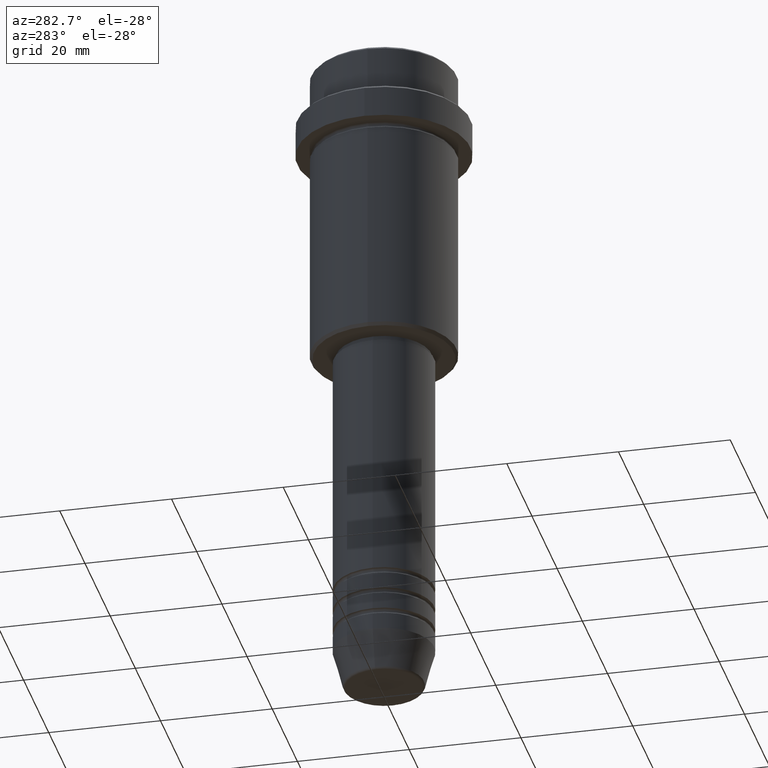
[diagram: clean part render]
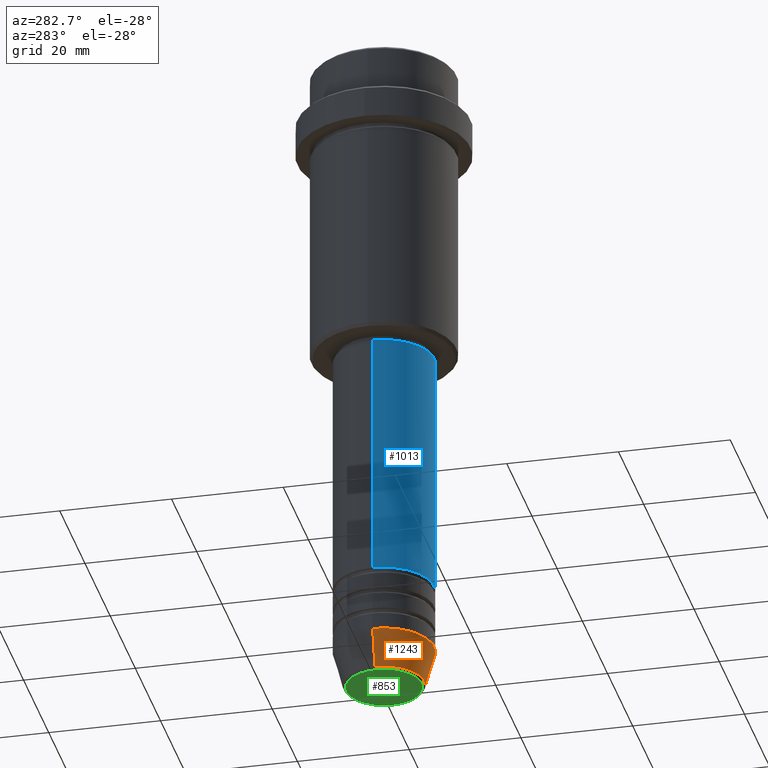
[diagram: same view with three faces highlighted in distinct colors, each labeled with its STEP entity id]
A machine part, auxiliary view with three faces highlighted in distinct colors.
Their STEP definitions:

[orange] entity #1243 — the highlighted conical surface has half-angle 15 deg.
#18 = CIRCLE ( 'NONE', #637, 7.223655072137193045 ) ;
#83 = VECTOR ( 'NONE', #785, 1000.000000000000000 ) ;
#90 = CARTESIAN_POINT ( 'NONE',  ( 0.000000000000000000, 0.000000000000000000, -113.0000000000000000 ) ) ;
#98 = DIRECTION ( 'NONE',  ( 1.000000000000000000, 0.000000000000000000, 0.000000000000000000 ) ) ;
#131 = DIRECTION ( 'NONE',  ( -0.000000000000000000, -0.000000000000000000, 1.000000000000000000 ) ) ;
#228 = ORIENTED_EDGE ( 'NONE', *, *, #995, .F. ) ;
#238 = CARTESIAN_POINT ( 'NONE',  ( -9.000000000000000000, 1.102182119232617714E-15, -113.0000000000000000 ) ) ;
#245 = CARTESIAN_POINT ( 'NONE',  ( -9.000000000000000000, 1.102182119232617714E-15, -113.0000000000000000 ) ) ;
#302 = DIRECTION ( 'NONE',  ( -0.000000000000000000, -0.000000000000000000, 1.000000000000000000 ) ) ;
#362 = LINE ( 'NONE', #245, #83 ) ;
#374 = CARTESIAN_POINT ( 'NONE',  ( 0.000000000000000000, 0.000000000000000000, -113.0000000000000000 ) ) ;
#382 = CARTESIAN_POINT ( 'NONE',  ( 7.223655072137193045, 0.000000000000000000, -119.6294095225512422 ) ) ;
#423 = AXIS2_PLACEMENT_3D ( 'NONE', #374, #131, #460 ) ;
#441 = DIRECTION ( 'NONE',  ( 0.2588190451025213501, 0.000000000000000000, 0.9659258262890680902 ) ) ;
#460 = DIRECTION ( 'NONE',  ( 1.000000000000000000, 0.000000000000000000, 0.000000000000000000 ) ) ;
#512 = VERTEX_POINT ( 'NONE', #382 ) ;
#518 = EDGE_CURVE ( 'NONE', #1177, #512, #18, .T. ) ;
#538 = CARTESIAN_POINT ( 'NONE',  ( 9.000000000000000000, 0.000000000000000000, -113.0000000000000000 ) ) ;
#559 = CIRCLE ( 'NONE', #423, 9.000000000000000000 ) ;
#600 = CARTESIAN_POINT ( 'NONE',  ( -7.223655072137193045, 9.934123627281767082E-16, -119.6294095225512422 ) ) ;
#634 = AXIS2_PLACEMENT_3D ( 'NONE', #90, #740, #98 ) ;
#637 = AXIS2_PLACEMENT_3D ( 'NONE', #835, #302, #930 ) ;
#649 = LINE ( 'NONE', #1307, #891 ) ;
#696 = EDGE_CURVE ( 'NONE', #512, #1357, #649, .T. ) ;
#740 = DIRECTION ( 'NONE',  ( -0.000000000000000000, -0.000000000000000000, 1.000000000000000000 ) ) ;
#783 = VERTEX_POINT ( 'NONE', #238 ) ;
#785 = DIRECTION ( 'NONE',  ( -0.2588190451025213501, 3.169619151431772337E-17, 0.9659258262890680902 ) ) ;
#792 = ORIENTED_EDGE ( 'NONE', *, *, #696, .T. ) ;
#835 = CARTESIAN_POINT ( 'NONE',  ( 0.000000000000000000, 0.000000000000000000, -119.6294095225512422 ) ) ;
#891 = VECTOR ( 'NONE', #441, 1000.000000000000000 ) ;
#903 = EDGE_CURVE ( 'NONE', #783, #1357, #559, .T. ) ;
#930 = DIRECTION ( 'NONE',  ( 1.000000000000000000, 0.000000000000000000, 0.000000000000000000 ) ) ;
#995 = EDGE_CURVE ( 'NONE', #1177, #783, #362, .T. ) ;
#1152 = ORIENTED_EDGE ( 'NONE', *, *, #518, .T. ) ;
#1177 = VERTEX_POINT ( 'NONE', #600 ) ;
#1187 = CONICAL_SURFACE ( 'NONE', #634, 9.000000000000000000, 0.2617993877991500740 ) ;
#1243 = ADVANCED_FACE ( 'NONE', ( #1285 ), #1187, .T. ) ;
#1246 = ORIENTED_EDGE ( 'NONE', *, *, #903, .F. ) ;
#1285 = FACE_OUTER_BOUND ( 'NONE', #1377, .T. ) ;
#1307 = CARTESIAN_POINT ( 'NONE',  ( 9.000000000000000000, 0.000000000000000000, -113.0000000000000000 ) ) ;
#1357 = VERTEX_POINT ( 'NONE', #538 ) ;
#1377 = EDGE_LOOP ( 'NONE', ( #228, #1152, #792, #1246 ) ) ;

[blue] entity #1013 — the highlighted cylindrical surface (partial cylindrical patch) has radius 9 mm, axis along (-0, -0, 1).
#28 = FACE_OUTER_BOUND ( 'NONE', #239, .T. ) ;
#40 = AXIS2_PLACEMENT_3D ( 'NONE', #424, #871, #1305 ) ;
#41 = DIRECTION ( 'NONE',  ( -0.000000000000000000, -0.000000000000000000, 1.000000000000000000 ) ) ;
#96 = VERTEX_POINT ( 'NONE', #718 ) ;
#100 = CARTESIAN_POINT ( 'NONE',  ( 9.000000000000001776, 0.000000000000000000, -56.00000000000002132 ) ) ;
#137 = EDGE_CURVE ( 'NONE', #146, #658, #285, .T. ) ;
#144 = EDGE_CURVE ( 'NONE', #764, #96, #583, .T. ) ;
#146 = VERTEX_POINT ( 'NONE', #478 ) ;
#239 = EDGE_LOOP ( 'NONE', ( #939, #1316, #931, #1235 ) ) ;
#266 = CARTESIAN_POINT ( 'NONE',  ( -9.000000000000000000, 1.102182119232617714E-15, -100.9999999999999005 ) ) ;
#285 = LINE ( 'NONE', #927, #1075 ) ;
#315 = EDGE_CURVE ( 'NONE', #764, #146, #1123, .T. ) ;
#376 = DIRECTION ( 'NONE',  ( -0.000000000000000000, -0.000000000000000000, 1.000000000000000000 ) ) ;
#409 = DIRECTION ( 'NONE',  ( -0.000000000000000000, -0.000000000000000000, 1.000000000000000000 ) ) ;
#424 = CARTESIAN_POINT ( 'NONE',  ( 0.000000000000000000, 0.000000000000000000, -100.9999999999999005 ) ) ;
#465 = DIRECTION ( 'NONE',  ( 1.000000000000000000, 0.000000000000000000, 0.000000000000000000 ) ) ;
#478 = CARTESIAN_POINT ( 'NONE',  ( 9.000000000000000000, 0.000000000000000000, -100.9999999999999005 ) ) ;
#490 = AXIS2_PLACEMENT_3D ( 'NONE', #501, #409, #831 ) ;
#501 = CARTESIAN_POINT ( 'NONE',  ( 0.000000000000000000, 0.000000000000000000, -56.00000000000002132 ) ) ;
#551 = EDGE_CURVE ( 'NONE', #96, #658, #1073, .T. ) ;
#554 = DIRECTION ( 'NONE',  ( -0.000000000000000000, -0.000000000000000000, 1.000000000000000000 ) ) ;
#566 = CARTESIAN_POINT ( 'NONE',  ( 0.000000000000000000, 0.000000000000000000, 0.000000000000000000 ) ) ;
#583 = LINE ( 'NONE', #1030, #1120 ) ;
#658 = VERTEX_POINT ( 'NONE', #100 ) ;
#718 = CARTESIAN_POINT ( 'NONE',  ( -9.000000000000001776, 1.102182119232617911E-15, -56.00000000000002132 ) ) ;
#764 = VERTEX_POINT ( 'NONE', #266 ) ;
#778 = CYLINDRICAL_SURFACE ( 'NONE', #1384, 9.000000000000001776 ) ;
#831 = DIRECTION ( 'NONE',  ( 1.000000000000000000, 0.000000000000000000, 0.000000000000000000 ) ) ;
#871 = DIRECTION ( 'NONE',  ( -0.000000000000000000, -0.000000000000000000, 1.000000000000000000 ) ) ;
#927 = CARTESIAN_POINT ( 'NONE',  ( 9.000000000000001776, 0.000000000000000000, 0.000000000000000000 ) ) ;
#931 = ORIENTED_EDGE ( 'NONE', *, *, #137, .T. ) ;
#939 = ORIENTED_EDGE ( 'NONE', *, *, #144, .F. ) ;
#1013 = ADVANCED_FACE ( 'NONE', ( #28 ), #778, .T. ) ;
#1030 = CARTESIAN_POINT ( 'NONE',  ( -9.000000000000001776, 1.102182119232617911E-15, 0.000000000000000000 ) ) ;
#1073 = CIRCLE ( 'NONE', #490, 9.000000000000001776 ) ;
#1075 = VECTOR ( 'NONE', #376, 1000.000000000000000 ) ;
#1120 = VECTOR ( 'NONE', #41, 1000.000000000000000 ) ;
#1123 = CIRCLE ( 'NONE', #40, 9.000000000000000000 ) ;
#1235 = ORIENTED_EDGE ( 'NONE', *, *, #551, .F. ) ;
#1305 = DIRECTION ( 'NONE',  ( 1.000000000000000000, 0.000000000000000000, 0.000000000000000000 ) ) ;
#1316 = ORIENTED_EDGE ( 'NONE', *, *, #315, .T. ) ;
#1384 = AXIS2_PLACEMENT_3D ( 'NONE', #566, #554, #465 ) ;

[green] entity #853 — the highlighted planar face has unit normal (0, -0, 1).
#8 = EDGE_CURVE ( 'NONE', #27, #38, #866, .T. ) ;
#27 = VERTEX_POINT ( 'NONE', #829 ) ;
#36 = AXIS2_PLACEMENT_3D ( 'NONE', #235, #1018, #671 ) ;
#38 = VERTEX_POINT ( 'NONE', #488 ) ;
#145 = PLANE ( 'NONE',  #865 ) ;
#197 = AXIS2_PLACEMENT_3D ( 'NONE', #1326, #343, #782 ) ;
#235 = CARTESIAN_POINT ( 'NONE',  ( 0.000000000000000000, 0.000000000000000000, -120.0000000000000000 ) ) ;
#314 = CIRCLE ( 'NONE', #197, 6.740692158992658278 ) ;
#343 = DIRECTION ( 'NONE',  ( 0.000000000000000000, 0.000000000000000000, -1.000000000000000000 ) ) ;
#477 = EDGE_CURVE ( 'NONE', #38, #27, #314, .T. ) ;
#488 = CARTESIAN_POINT ( 'NONE',  ( -6.740692158992658278, 8.550696569392689626E-16, -120.0000000000000000 ) ) ;
#567 = DIRECTION ( 'NONE',  ( 1.000000000000000000, 0.000000000000000000, 0.000000000000000000 ) ) ;
#664 = ORIENTED_EDGE ( 'NONE', *, *, #477, .T. ) ;
#671 = DIRECTION ( 'NONE',  ( 1.000000000000000000, 0.000000000000000000, 0.000000000000000000 ) ) ;
#782 = DIRECTION ( 'NONE',  ( 1.000000000000000000, 0.000000000000000000, 0.000000000000000000 ) ) ;
#829 = CARTESIAN_POINT ( 'NONE',  ( 6.740692158992658278, 0.000000000000000000, -120.0000000000000000 ) ) ;
#853 = ADVANCED_FACE ( 'NONE', ( #1117 ), #145, .F. ) ;
#865 = AXIS2_PLACEMENT_3D ( 'NONE', #1128, #923, #567 ) ;
#866 = CIRCLE ( 'NONE', #36, 6.740692158992658278 ) ;
#923 = DIRECTION ( 'NONE',  ( 0.000000000000000000, -0.000000000000000000, 1.000000000000000000 ) ) ;
#1018 = DIRECTION ( 'NONE',  ( 0.000000000000000000, 0.000000000000000000, -1.000000000000000000 ) ) ;
#1117 = FACE_OUTER_BOUND ( 'NONE', #1197, .T. ) ;
#1121 = ORIENTED_EDGE ( 'NONE', *, *, #8, .T. ) ;
#1128 = CARTESIAN_POINT ( 'NONE',  ( 0.000000000000000000, 0.000000000000000000, -120.0000000000000000 ) ) ;
#1197 = EDGE_LOOP ( 'NONE', ( #1121, #664 ) ) ;
#1326 = CARTESIAN_POINT ( 'NONE',  ( 0.000000000000000000, 0.000000000000000000, -120.0000000000000000 ) ) ;